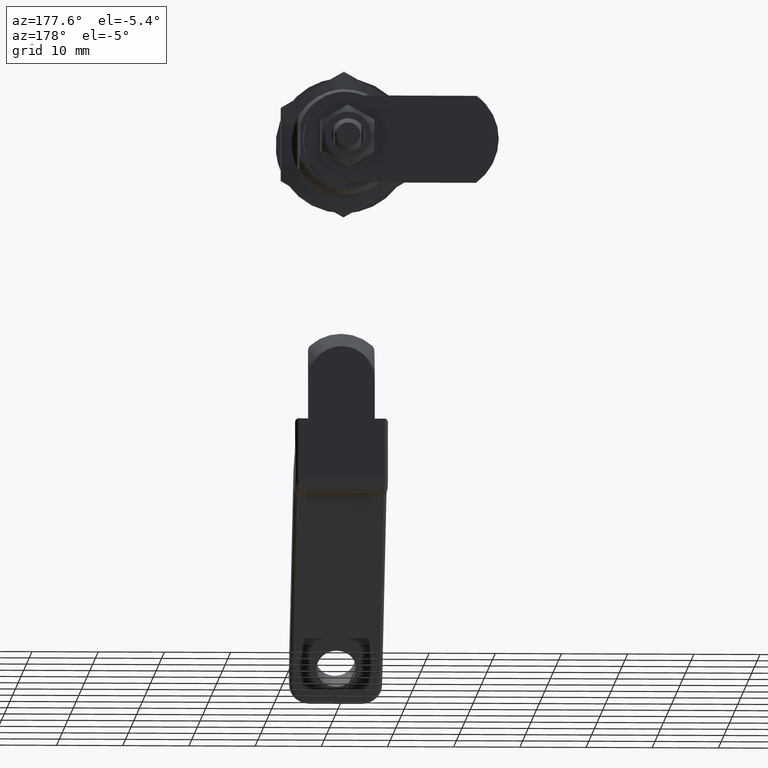
[diagram: clean part render]
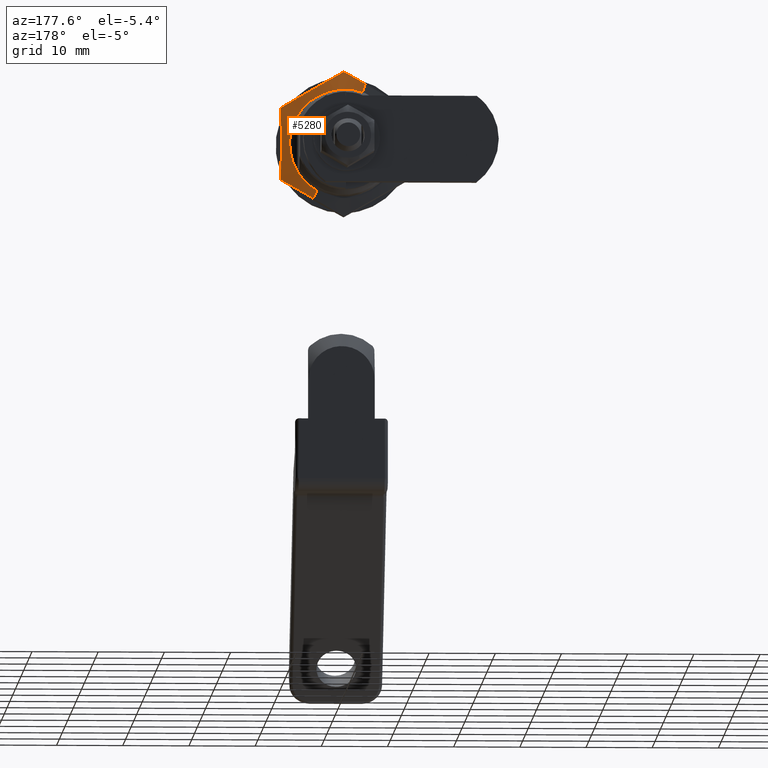
[diagram: same view with one face highlighted and labeled with its STEP entity id]
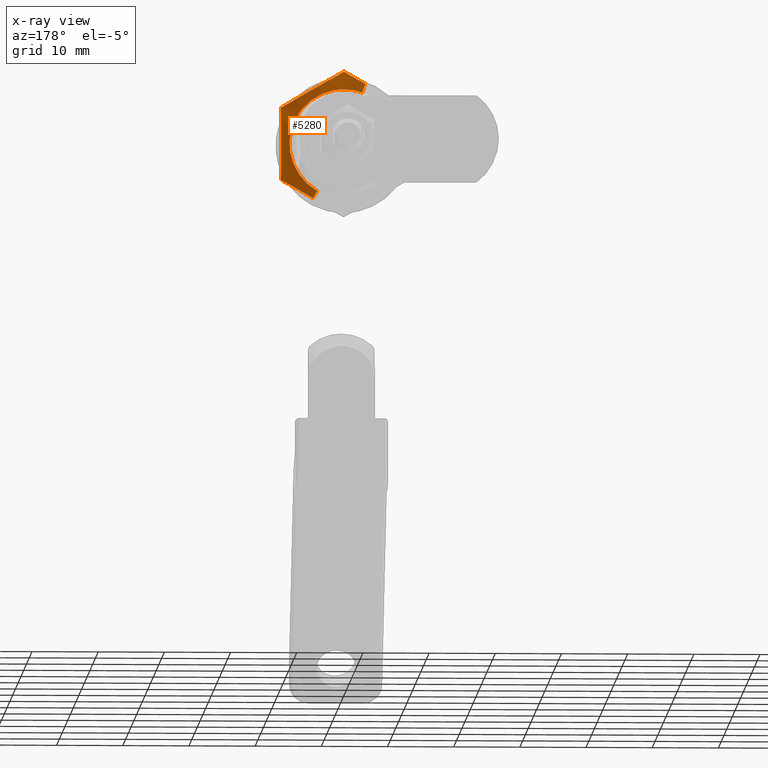
[diagram: x-ray of the same camera — body ghosted, the highlighted face saturated]
A machine part, auxiliary view. The second image highlights one B-rep face of the part: STEP entity #5280.
The next image is the same camera in x-ray: the body ghosted, the highlighted face saturated — about 0% of this face is hidden behind the body in this view.
In plain terms, the highlighted face is a freeform B-spline surface patch.
Its self-contained STEP definition (entity closure, byte-faithful):
#5114=CARTESIAN_POINT('',(11.998942751208066,-3.985956506335776,-7.047520114511760));
#5115=CARTESIAN_POINT('',(11.998942751208068,-9.894105889469190,-3.705972152752476));
#5116=CARTESIAN_POINT('',(11.998942751208070,-7.635043813333295,2.694716126668884));
#5117=CARTESIAN_POINT('',(11.998942751208070,-4.940327686664412,10.329759940002177));
#5118=CARTESIAN_POINT('',(11.998942751208070,2.694716126668883,7.635043813333295));
#5119=CARTESIAN_POINT('',(12.024234443356624,-4.750446405798519,-8.399205195681308));
#5120=CARTESIAN_POINT('',(12.024234443356622,-11.791754296994702,-4.416762216308377));
#5121=CARTESIAN_POINT('',(12.024234443356624,-9.099413499247051,3.211551485379692));
#5122=CARTESIAN_POINT('',(12.024234443356624,-5.887862013867359,12.310964984626738));
#5123=CARTESIAN_POINT('',(12.024234443356624,3.211551485379690,9.099413499247051));
#5124=CARTESIAN_POINT('',(11.467872537481623,-5.464295688437991,-9.661353232202725));
#5125=CARTESIAN_POINT('',(11.467872537481620,-13.563700473609996,-5.080468796778865));
#5126=CARTESIAN_POINT('',(11.467872537481627,-10.466781793508558,3.694151125110320));
#5127=CARTESIAN_POINT('',(11.467872537481622,-6.772630668398238,14.160932918618872));
#5128=CARTESIAN_POINT('',(11.467872537481627,3.694151125110319,10.466781793508559));
#5136=(BOUNDED_SURFACE()B_SPLINE_SURFACE(2,2,((#5114,#5119,#5124),(#5115,#5120,#5125),(#5116,#5121,#5126),(#5117,#5122,#5127),(#5118,#5123,#5128)),.UNSPECIFIED.,.F.,.F.,.U.)B_SPLINE_SURFACE_WITH_KNOTS((3,2,3),(3,3),(0.0,16.183513410101799,34.573869657594820),(0.0,3.077610704253982),.UNSPECIFIED.)GEOMETRIC_REPRESENTATION_ITEM()RATIONAL_B_SPLINE_SURFACE(((0.893763481944456,0.877380133748972,0.893611077780885),(0.707142665111426,0.694180215044438,0.707022083449075),(0.952696374551969,0.935232742680477,0.952533921176961),(0.673658066857536,0.661309414337059,0.673543194974442),(0.952696374551969,0.935232742680477,0.952533921176961)))REPRESENTATION_ITEM('')SURFACE());
#5137=CARTESIAN_POINT('',(11.516441776266999,-9.500000000000000,-5.484772157832130));
#5138=VERTEX_POINT('',#5137);
#5139=CARTESIAN_POINT('',(11.898281701338901,-4.677017928131430,-8.269377359493511));
#5140=VERTEX_POINT('',#5139);
#5141=CARTESIAN_POINT('',(11.516441776266999,-9.500000000000000,-5.484772157832130));
#5142=CARTESIAN_POINT('',(11.599621006454051,-9.104167261112274,-5.713310829710195));
#5143=CARTESIAN_POINT('',(11.663332288209441,-8.708334555775442,-5.941849481165954));
#5144=CARTESIAN_POINT('',(11.763174638687209,-7.916669192633277,-6.398926755145214));
#5145=CARTESIAN_POINT('',(11.799307954297991,-7.520836534824083,-6.627465377671077));
#5146=CARTESIAN_POINT('',(11.852981151414230,-6.729171251249451,-7.084542603217879));
#5147=CARTESIAN_POINT('',(11.870552034964639,-6.333338625430588,-7.313081206271341));
#5148=CARTESIAN_POINT('',(11.893217552087970,-5.541673395294326,-7.770158399290401));
#5149=CARTESIAN_POINT('',(11.898655654299811,-5.121510701264769,-8.012744251499065));
#5150=CARTESIAN_POINT('',(11.898320706968279,-4.701348017184435,-8.255330097651672));
#5151=CARTESIAN_POINT('',(11.898281701338901,-4.677017928131430,-8.269377359493511));
#5152=B_SPLINE_CURVE_WITH_KNOTS('',3,(#5141,#5142,#5143,#5144,#5145,#5146,#5147,#5148,#5149,#5150,#5151),.UNSPECIFIED.,.F.,.U.,(4,2,2,2,1,4),(0.0,0.125000000000000,0.250000000000000,0.375000000000000,0.500000000000000,0.507683200358727),.UNSPECIFIED.);
#5153=EDGE_CURVE('',#5138,#5140,#5152,.T.);
#5154=ORIENTED_EDGE('',*,*,#5153,.T.);
#5155=CARTESIAN_POINT('',(12.000001999999180,-4.054181073596292,-7.168147242301918));
#5156=VERTEX_POINT('',#5155);
#5157=CARTESIAN_POINT('',(12.000001999999183,-4.054181073596292,-7.168147242301918));
#5158=CARTESIAN_POINT('',(11.999366107727605,-4.367587442672283,-7.722277155190654));
#5159=CARTESIAN_POINT('',(11.898281701338895,-4.677017928131430,-8.269377359493511));
#5167=(BOUNDED_CURVE()B_SPLINE_CURVE(2,(#5157,#5158,#5159),.UNSPECIFIED.,.F.,.U.)B_SPLINE_CURVE_WITH_KNOTS((3,3),(-1.359768861940208,-1.033789647153872),.UNSPECIFIED.)CURVE()GEOMETRIC_REPRESENTATION_ITEM()RATIONAL_B_SPLINE_CURVE((0.892342700497256,0.886173050933175,0.885593594777050))REPRESENTATION_ITEM(''));
#5168=EDGE_CURVE('',#5156,#5140,#5167,.T.);
#5169=ORIENTED_EDGE('',*,*,#5168,.F.);
#5170=CARTESIAN_POINT('',(12.000001999999800,0.0,8.235212143866180));
#5171=VERTEX_POINT('',#5170);
#5172=CARTESIAN_POINT('',(12.000001999999176,-4.054181073596292,-7.168147242301918));
#5173=CARTESIAN_POINT('',(12.000001999999800,-8.235212143866180,-4.803427815081023));
#5174=CARTESIAN_POINT('',(12.000001999999800,-8.235212143866180,0.0));
#5175=CARTESIAN_POINT('',(12.000001999999800,-8.235212143866180,8.235212143866180));
#5176=CARTESIAN_POINT('',(12.000001999999800,0.0,8.235212143866180));
#5184=(BOUNDED_CURVE()B_SPLINE_CURVE(2,(#5172,#5173,#5174,#5175,#5176),.UNSPECIFIED.,.F.,.U.)B_SPLINE_CURVE_WITH_KNOTS((3,2,3),(0.583907880039927,0.750000000000000,1.0),.UNSPECIFIED.)CURVE()GEOMETRIC_REPRESENTATION_ITEM()RATIONAL_B_SPLINE_CURVE((0.869379581117940,0.805410977461376,1.0,0.707106781186548,1.0))REPRESENTATION_ITEM(''));
#5185=EDGE_CURVE('',#5156,#5171,#5184,.T.);
#5186=ORIENTED_EDGE('',*,*,#5185,.T.);
#5187=CARTESIAN_POINT('',(12.000001999999130,2.740839555940339,7.765727113037839));
#5188=VERTEX_POINT('',#5187);
#5189=CARTESIAN_POINT('',(12.000001999999800,0.0,8.235212143866180));
#5190=CARTESIAN_POINT('',(12.000001999999801,1.410629391210681,8.235212143866180));
#5191=CARTESIAN_POINT('',(12.000001999999132,2.740839555940338,7.765727113037840));
#5199=(BOUNDED_CURVE()B_SPLINE_CURVE(2,(#5189,#5190,#5191),.UNSPECIFIED.,.F.,.U.)B_SPLINE_CURVE_WITH_KNOTS((3,3),(0.0,0.056548785553882),.UNSPECIFIED.)CURVE()GEOMETRIC_REPRESENTATION_ITEM()RATIONAL_B_SPLINE_CURVE((1.0,0.933748976716528,0.897469272700114))REPRESENTATION_ITEM(''));
#5200=EDGE_CURVE('',#5171,#5188,#5199,.T.);
#5201=ORIENTED_EDGE('',*,*,#5200,.T.);
#5202=CARTESIAN_POINT('',(11.870296774063970,3.216261599668389,9.112758846929371));
#5203=VERTEX_POINT('',#5202);
#5204=CARTESIAN_POINT('',(12.000001999999133,2.740839555940338,7.765727113037839));
#5205=CARTESIAN_POINT('',(11.999288772968447,2.980489058594147,8.444735352859111));
#5206=CARTESIAN_POINT('',(11.870296774063968,3.216261599668389,9.112758846929371));
#5214=(BOUNDED_CURVE()B_SPLINE_CURVE(2,(#5204,#5205,#5206),.UNSPECIFIED.,.F.,.U.)B_SPLINE_CURVE_WITH_KNOTS((3,3),(-1.359768861916690,-0.991398975716613),.UNSPECIFIED.)CURVE()GEOMETRIC_REPRESENTATION_ITEM()RATIONAL_B_SPLINE_CURVE((0.951181907597693,0.943750234239596,0.943927903876370))REPRESENTATION_ITEM(''));
#5215=EDGE_CURVE('',#5188,#5203,#5214,.T.);
#5216=ORIENTED_EDGE('',*,*,#5215,.T.);
#5217=CARTESIAN_POINT('',(11.516411353226120,-0.000084141978292,10.969728433549420));
#5218=VERTEX_POINT('',#5217);
#5219=CARTESIAN_POINT('',(11.870296774063970,3.216261599668389,9.112758846929371));
#5220=CARTESIAN_POINT('',(11.859508510244240,2.935819720559515,9.274673043372966));
#5221=CARTESIAN_POINT('',(11.845145781932640,2.655377845872780,9.436587237489158));
#5222=CARTESIAN_POINT('',(11.799294114731120,1.979099259794425,9.827039278875210));
#5223=CARTESIAN_POINT('',(11.763158944160640,1.583262554150877,10.055577123119820));
#5224=CARTESIAN_POINT('',(11.663310876999210,0.791589176981497,10.512652793652659));
#5225=CARTESIAN_POINT('',(11.599595739533830,0.395752505458436,10.741190619939440));
#5226=CARTESIAN_POINT('',(11.516411353226120,-0.000084141978292,10.969728433549420));
#5227=B_SPLINE_CURVE_WITH_KNOTS('',3,(#5219,#5220,#5221,#5222,#5223,#5224,#5225,#5226),.UNSPECIFIED.,.F.,.U.,(4,2,2,4),(0.661440166871527,0.750000000000000,0.875000000000000,1.0),.UNSPECIFIED.);
#5228=EDGE_CURVE('',#5203,#5218,#5227,.T.);
#5229=ORIENTED_EDGE('',*,*,#5228,.T.);
#5230=CARTESIAN_POINT('',(11.516438446888101,-9.500000000000000,5.484790452667420));
#5231=VERTEX_POINT('',#5230);
#5232=CARTESIAN_POINT('',(11.516411353226120,-0.000084141978292,10.969728433549420));
#5233=CARTESIAN_POINT('',(11.599593889774381,-0.395913708121292,10.741189501864060));
#5234=CARTESIAN_POINT('',(11.663308229870809,-0.791743335414311,10.512650534872670));
#5235=CARTESIAN_POINT('',(11.763156091528060,-1.583402676632287,10.055572550871460));
#5236=CARTESIAN_POINT('',(11.799291856408010,-1.979232390550197,9.827033533865702));
#5237=CARTESIAN_POINT('',(11.852969304259251,-2.770891876790426,9.369955466133387));
#5238=CARTESIAN_POINT('',(11.870541986577170,-3.166721649015374,9.141416415463050));
#5239=CARTESIAN_POINT('',(11.893210585237210,-3.958381232655058,8.684338291495481));
#5240=CARTESIAN_POINT('',(11.903459554612301,-4.750040855305063,8.227260145004625));
#5241=CARTESIAN_POINT('',(11.893212933423079,-5.541700542332151,7.770181961344551));
#5242=CARTESIAN_POINT('',(11.870547153049371,-6.333360268368082,7.313103755162042));
#5243=CARTESIAN_POINT('',(11.852976116372471,-6.729190150980202,7.084564640757768));
#5244=CARTESIAN_POINT('',(11.799302791348330,-7.520849974411489,6.627486378342370));
#5245=CARTESIAN_POINT('',(11.763169502786701,-7.916679915328037,6.398947230275027));
#5246=CARTESIAN_POINT('',(11.663327652095960,-8.708339883775647,5.941868884131951));
#5247=CARTESIAN_POINT('',(11.599616843048610,-9.104169911313768,5.713329686052143));
#5248=CARTESIAN_POINT('',(11.516438446888101,-9.500000000000000,5.484790452667420));
#5249=B_SPLINE_CURVE_WITH_KNOTS('',3,(#5232,#5233,#5234,#5235,#5236,#5237,#5238,#5239,#5240,#5241,#5242,#5243,#5244,#5245,#5246,#5247,#5248),.UNSPECIFIED.,.F.,.U.,(4,2,2,2,1,2,2,2,4),(0.0,0.125000000000000,0.250000000000000,0.375000000000000,0.500000000000000,0.625000000000000,0.750000000000000,0.875000000000000,1.0),.UNSPECIFIED.);
#5250=EDGE_CURVE('',#5218,#5231,#5249,.T.);
#5251=ORIENTED_EDGE('',*,*,#5250,.T.);
#5252=CARTESIAN_POINT('',(11.516438446888110,-9.500000000000000,5.484790452667415));
#5253=CARTESIAN_POINT('',(11.598453277262839,-9.500000000000004,5.034122879591726));
#5254=CARTESIAN_POINT('',(11.661828314022131,-9.500000000000000,4.581699835722618));
#5255=CARTESIAN_POINT('',(11.761516179480751,-9.499999999999998,3.674305065481000));
#5256=CARTESIAN_POINT('',(11.797842902535731,-9.500000000000000,3.219334647660295));
#5257=CARTESIAN_POINT('',(11.851952493559720,-9.499999999999996,2.307647376587654));
#5258=CARTESIAN_POINT('',(11.869774653007090,-9.499999999999998,1.850934223754507));
#5259=CARTESIAN_POINT('',(11.892872205820190,-9.500000000000000,0.936326280465919));
#5260=CARTESIAN_POINT('',(11.898182814857391,-9.500000000000002,0.478434806575235));
#5261=CARTESIAN_POINT('',(11.898357864328220,-9.500000000000002,-0.037239279927962));
#5262=CARTESIAN_POINT('',(11.898293389232730,-9.500000000000002,-0.095145341624666));
#5263=CARTESIAN_POINT('',(11.897994938943381,-9.500000000000002,-0.210457672411953));
#5264=CARTESIAN_POINT('',(11.897293368197611,-9.500000000000000,-0.383405424328970));
#5265=CARTESIAN_POINT('',(11.895825623206809,-9.500000000000002,-0.556290576741321));
#5266=CARTESIAN_POINT('',(11.891831931957549,-9.500000000000004,-0.901974422283965));
#5267=CARTESIAN_POINT('',(11.887766652355900,-9.500000000000000,-1.132315703400140));
#5268=CARTESIAN_POINT('',(11.870763847546071,-9.500000000000004,-1.822946798372275));
#5269=CARTESIAN_POINT('',(11.853120088503671,-9.499999999999998,-2.282852094073658));
#5270=CARTESIAN_POINT('',(11.799212801406860,-9.500000000000002,-3.201141375768634));
#5271=CARTESIAN_POINT('',(11.762909537224971,-9.500000000000000,-3.659522115161453));
#5272=CARTESIAN_POINT('',(11.662894499760920,-9.500000000000004,-4.574044208971726));
#5273=CARTESIAN_POINT('',(11.599169487935880,-9.500000000000002,-5.030184481747196));
#5274=CARTESIAN_POINT('',(11.516441776267010,-9.500000000000000,-5.484772157832132));
#5275=B_SPLINE_CURVE_WITH_KNOTS('',3,(#5252,#5253,#5254,#5255,#5256,#5257,#5258,#5259,#5260,#5261,#5262,#5263,#5264,#5265,#5266,#5267,#5268,#5269,#5270,#5271,#5272,#5273,#5274),.UNSPECIFIED.,.F.,.U.,(4,2,2,2,2,2,1,2,2,2,2,4),(0.0,0.125000000000000,0.250000000000000,0.375000000000000,0.500000000000000,0.515625000000000,0.531250000000000,0.562500000000000,0.625000000000000,0.750000000000000,0.875000000000000,1.0),.UNSPECIFIED.);
#5276=EDGE_CURVE('',#5231,#5138,#5275,.T.);
#5277=ORIENTED_EDGE('',*,*,#5276,.T.);
#5278=EDGE_LOOP('',(#5154,#5169,#5186,#5201,#5216,#5229,#5251,#5277));
#5279=FACE_OUTER_BOUND('',#5278,.T.);
#5280=ADVANCED_FACE('',(#5279),#5136,.T.);